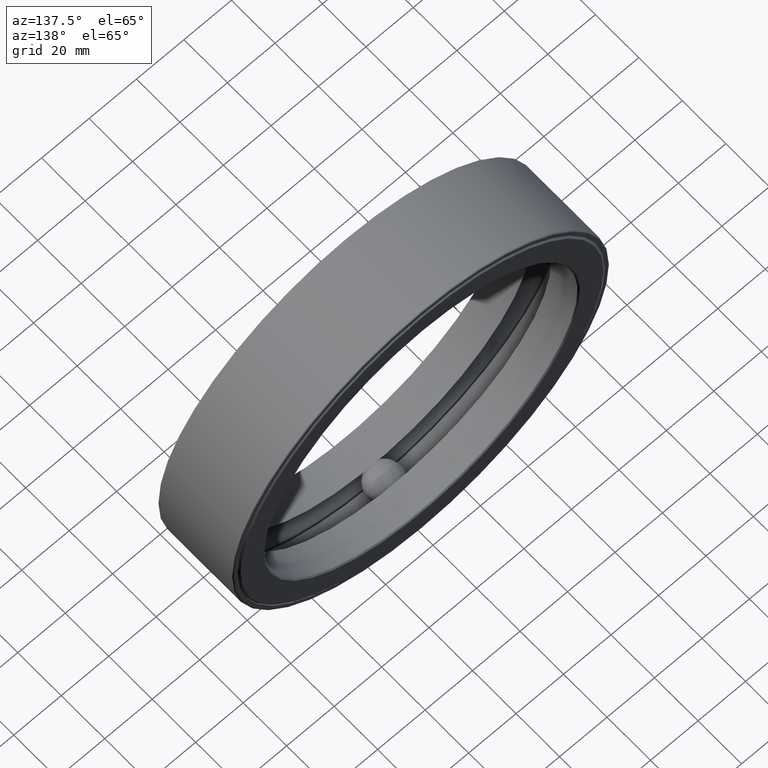
[diagram: clean part render]
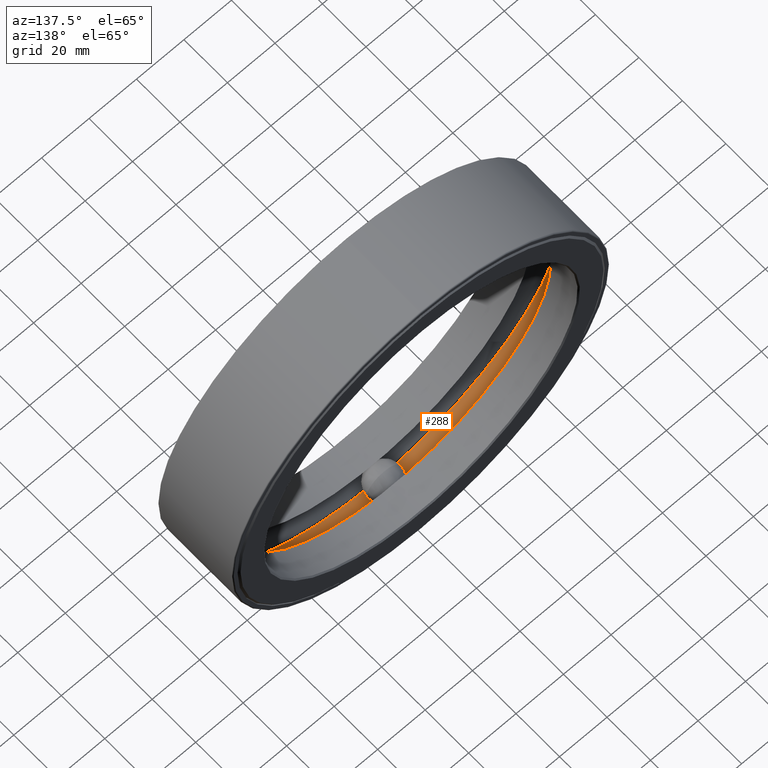
[diagram: same view with one face highlighted and labeled with its STEP entity id]
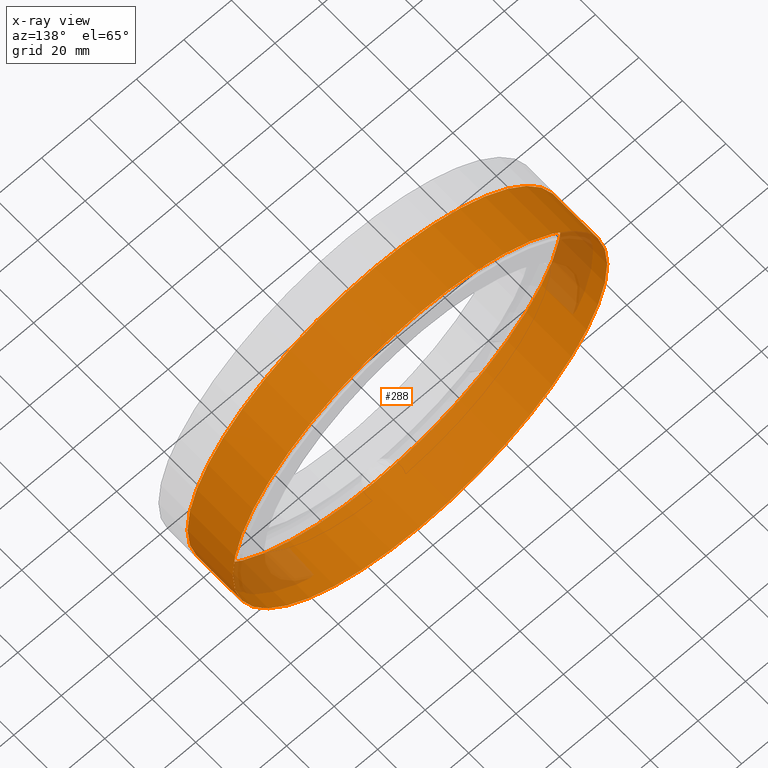
[diagram: x-ray of the same camera — body ghosted, the highlighted face saturated]
A machine part, auxiliary view. The second image highlights one B-rep face of the part: STEP entity #288.
The next image is the same camera in x-ray: the body ghosted, the highlighted face saturated — about 8% of this face is hidden behind the body in this view.
In plain terms, the highlighted cylindrical surface (bore or boss wall) has radius 78.867 mm, axis along (-0, 1, -0).
Its self-contained STEP definition (entity closure, byte-faithful):
#28 = ORIENTED_EDGE ( 'NONE', *, *, #206, .F. ) ;
#86 = CARTESIAN_POINT ( 'NONE',  ( 0.0000000000000000000, 0.0000000000000000000, 0.0000000000000000000 ) ) ;
#104 = AXIS2_PLACEMENT_3D ( 'NONE', #86, #339, #342 ) ;
#106 = DIRECTION ( 'NONE',  ( -0.0000000000000000000, 1.000000000000000000, -0.0000000000000000000 ) ) ;
#132 = AXIS2_PLACEMENT_3D ( 'NONE', #149, #232, #283 ) ;
#149 = CARTESIAN_POINT ( 'NONE',  ( 0.0000000000000000000, 1.339999999999999900, 0.0000000000000000000 ) ) ;
#156 = DIRECTION ( 'NONE',  ( 0.0000000000000000000, 0.0000000000000000000, 1.000000000000000000 ) ) ;
#172 = EDGE_CURVE ( 'NONE', #389, #389, #322, .T. ) ;
#206 = EDGE_CURVE ( 'NONE', #353, #353, #297, .T. ) ;
#232 = DIRECTION ( 'NONE',  ( -0.0000000000000000000, 1.000000000000000000, -0.0000000000000000000 ) ) ;
#265 = CARTESIAN_POINT ( 'NONE',  ( 0.0000000000000000000, 1.339999999999999900, 3.105000000000000900 ) ) ;
#283 = DIRECTION ( 'NONE',  ( 0.0000000000000000000, 0.0000000000000000000, 1.000000000000000000 ) ) ;
#288 = ADVANCED_FACE ( 'NONE', ( #557, #546 ), #518, .F. ) ;
#297 = CIRCLE ( 'NONE', #494, 3.105000000000000900 ) ;
#308 = ORIENTED_EDGE ( 'NONE', *, *, #172, .T. ) ;
#322 = CIRCLE ( 'NONE', #132, 3.105000000000000900 ) ;
#339 = DIRECTION ( 'NONE',  ( -0.0000000000000000000, 1.000000000000000000, -0.0000000000000000000 ) ) ;
#342 = DIRECTION ( 'NONE',  ( 0.0000000000000000000, 0.0000000000000000000, 1.000000000000000000 ) ) ;
#353 = VERTEX_POINT ( 'NONE', #538 ) ;
#368 = CARTESIAN_POINT ( 'NONE',  ( 0.0000000000000000000, 0.5187499999999997100, 0.0000000000000000000 ) ) ;
#389 = VERTEX_POINT ( 'NONE', #265 ) ;
#397 = EDGE_LOOP ( 'NONE', ( #308 ) ) ;
#399 = EDGE_LOOP ( 'NONE', ( #28 ) ) ;
#494 = AXIS2_PLACEMENT_3D ( 'NONE', #368, #106, #156 ) ;
#518 = CYLINDRICAL_SURFACE ( 'NONE', #104, 3.105000000000000900 ) ;
#538 = CARTESIAN_POINT ( 'NONE',  ( 0.0000000000000000000, 0.5187499999999997100, 3.105000000000000900 ) ) ;
#546 = FACE_OUTER_BOUND ( 'NONE', #397, .T. ) ;
#557 = FACE_OUTER_BOUND ( 'NONE', #399, .T. ) ;